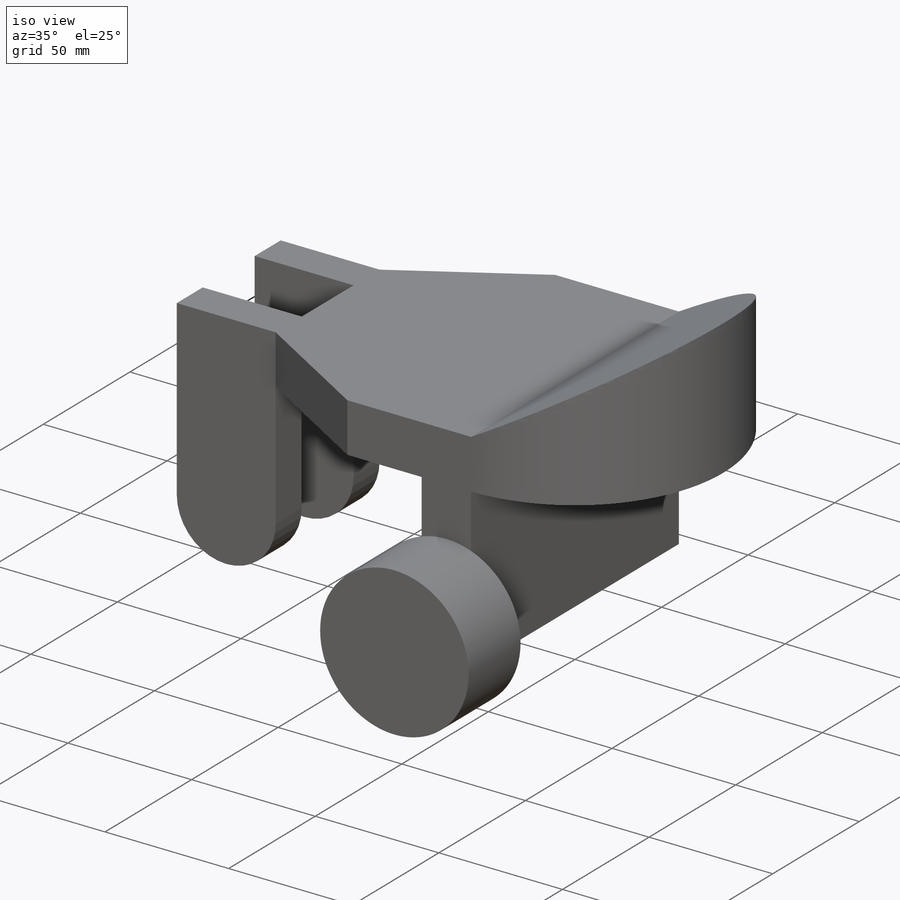
[diagram: iso view]
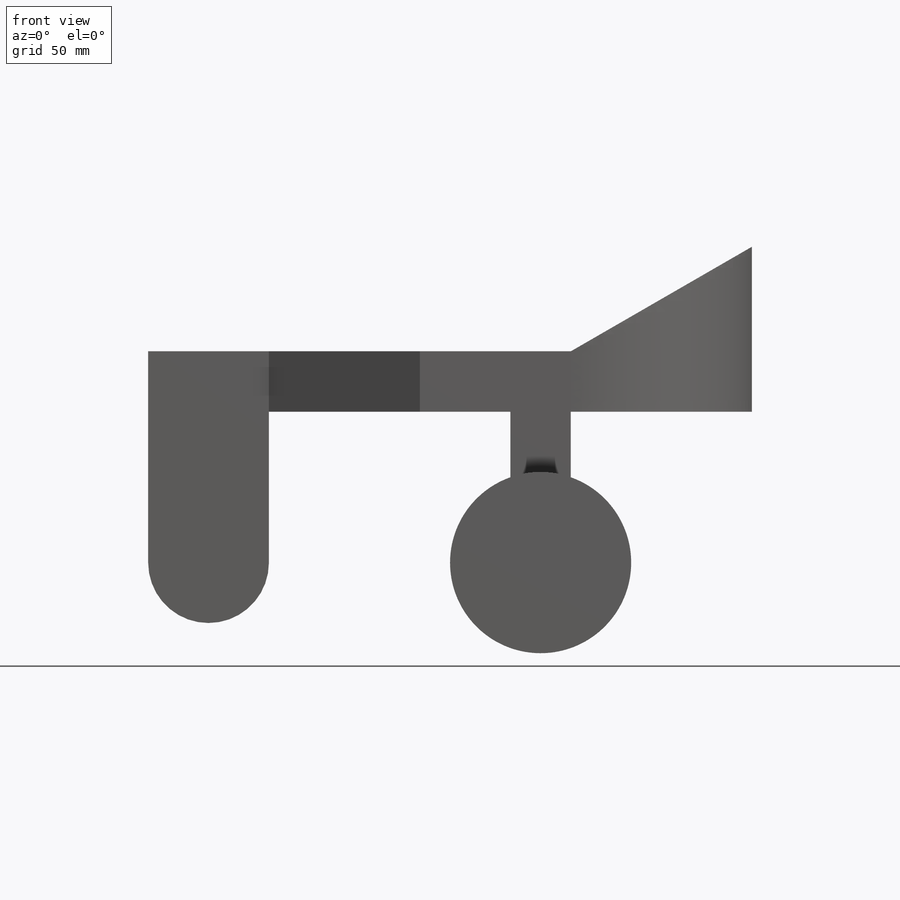
[diagram: front view]
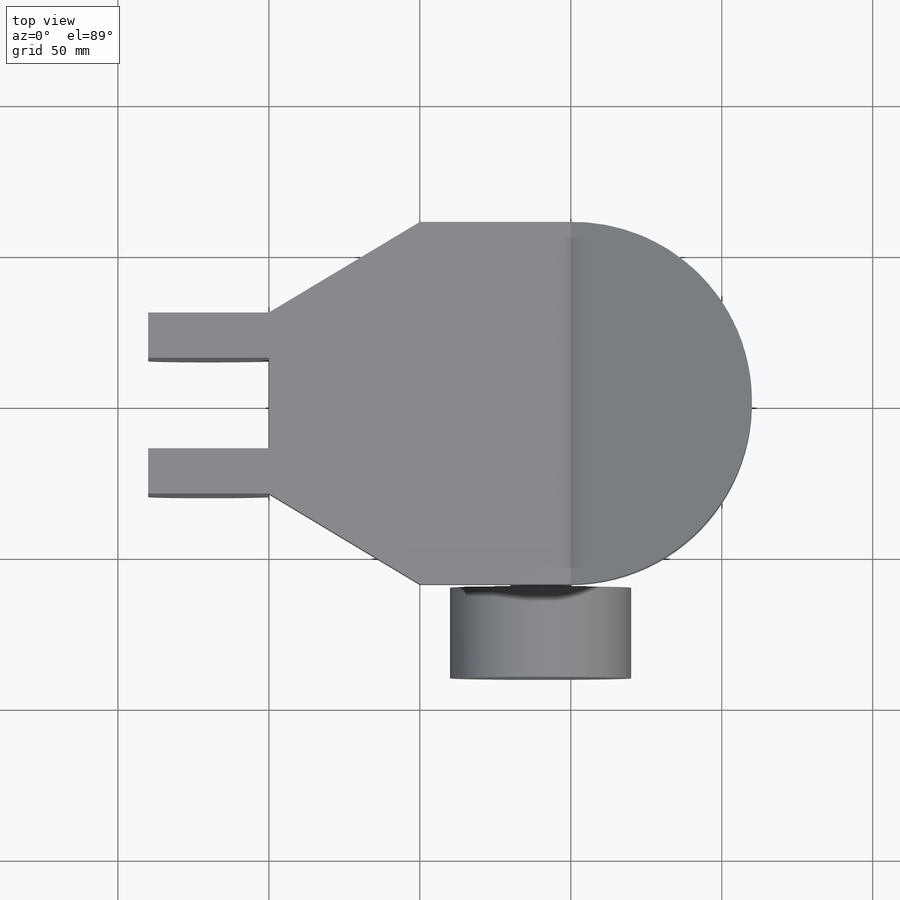
[diagram: top view]
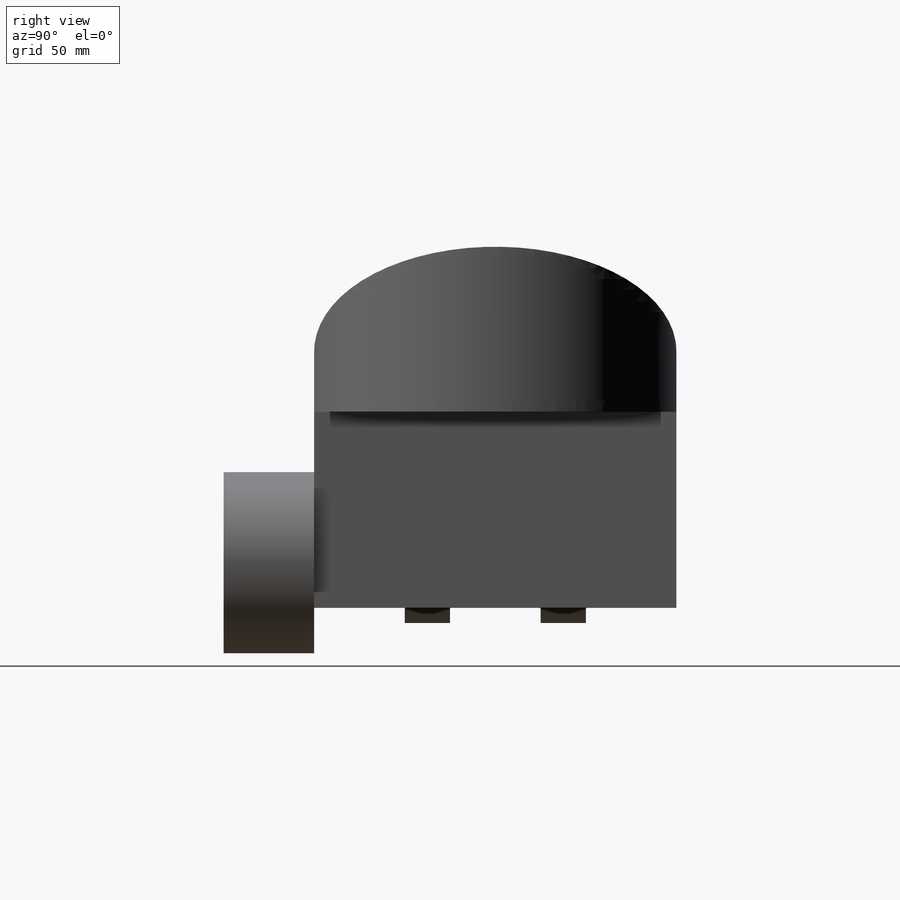
[diagram: right view]
SOLIDWORKS PART (.sldprt)
format: sldprt  version: not decoded by parser v0  size: 740,864 bytes
history: native  units: mm
features: sketch x14, extrude x13, material x1, cut_extrude x1, boolean_combine x1 (+14 scaffold rows collapsed)
feature tree (44):
  scaffold x14  (default folders/planes/origin — collapsed)
  material  "Material <not specified>"
  sketch  "Sketch1"  dims[c1.D1=50.0mm c1.D2=50.0mm c1.D3=15.0mm c2.D1=40.0mm]
  extrude  "Extrude1"  Depth=20mm
  sketch  "Sketch2"
  extrude  "Extrude2"  Depth=40mm
  sketch  "Sketch4"  dims[c1.D1=30.0deg c2.D1=10.0mm]
  cut_extrude  "Cut-Extrude1"  Depth=120mm
  sketch  "Sketch5"  dims[D1=20.0mm]
  extrude  "Extrude3"  Depth=50mm
  sketch  "Sketch6"
  extrude  "Extrude4"  Depth=15mm
  sketch  "Sketch7"
  extrude  "Extrude5"  Depth=15mm
  sketch  "Sketch8"
  extrude  "Extrude6"  Depth=15mm
  sketch  "Sketch9"  dims[D1=15.0mm]
  extrude  "Extrude7"  Depth=30mm
  sketch  "Sketch10"  dims[D1=15.0mm]
  extrude  "Extrude8"  Depth=30mm
  sketch  "Sketch12"  dims[D1=~37.057527mm]
  extrude  "Extrude9"  Depth=30mm
  sketch  "Sketch13"
  extrude  "Extrude10"  Depth=50mm
  sketch  "Sketch14"
  extrude  "Extrude12"  Depth=30mm
  boolean_combine  "Combine1"
  sketch  "Sketch15"  dims[D1=~8.672477mm]
  extrude  "Extrude13"  Depth=45mm
  sketch  "Sketch16"  dims[D1=~7.804718mm]
  extrude  "Extrude14"  Depth=45mm
decode coverage: 22 of 29 modeling features carry decoded parameters
note: ~ marks probable driven/reference dimensions
note: suppression state not decoded; provenance and decode notes live in map.json
